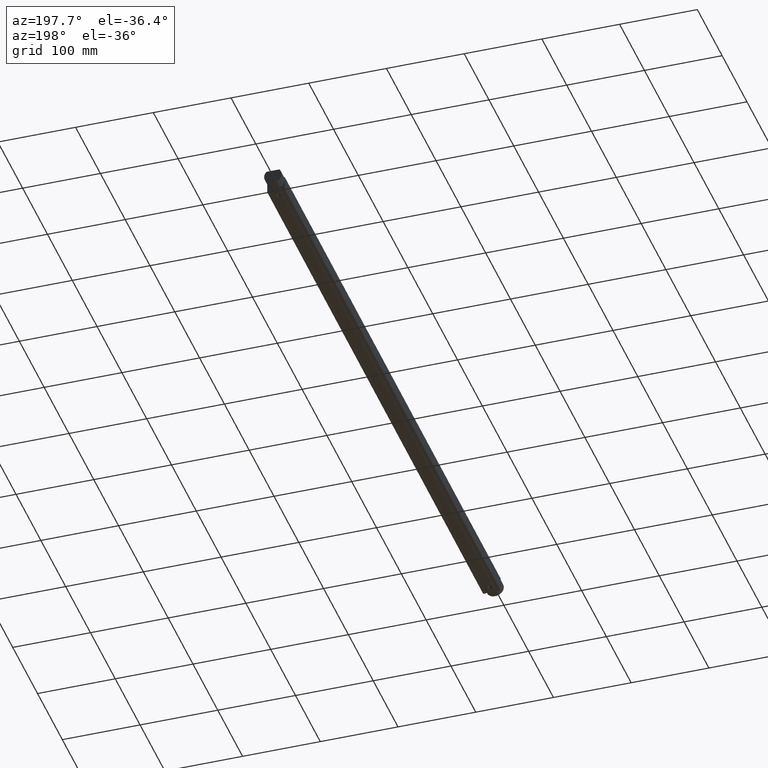
[diagram: clean part render]
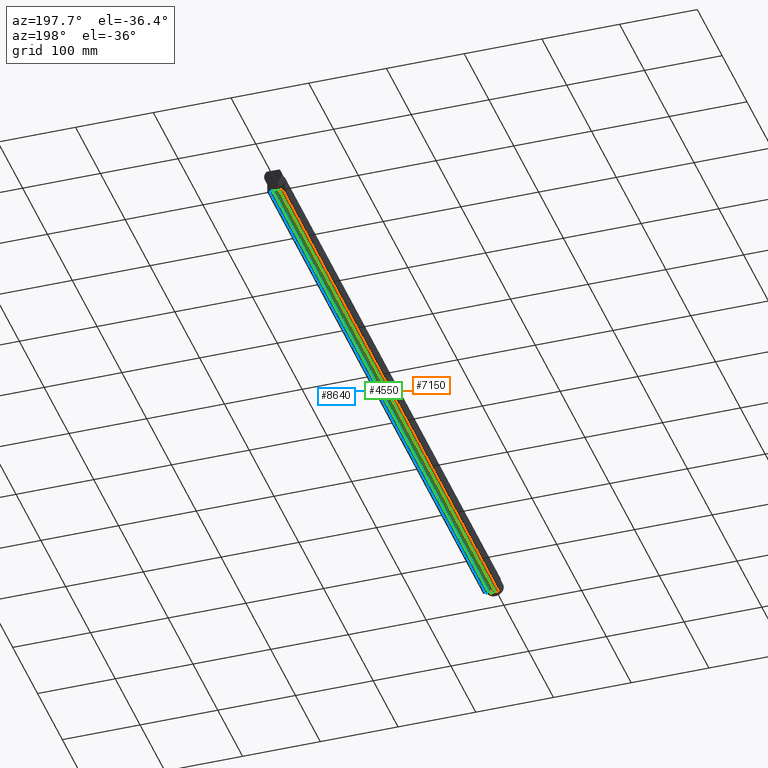
[diagram: same view with three faces highlighted in distinct colors, each labeled with its STEP entity id]
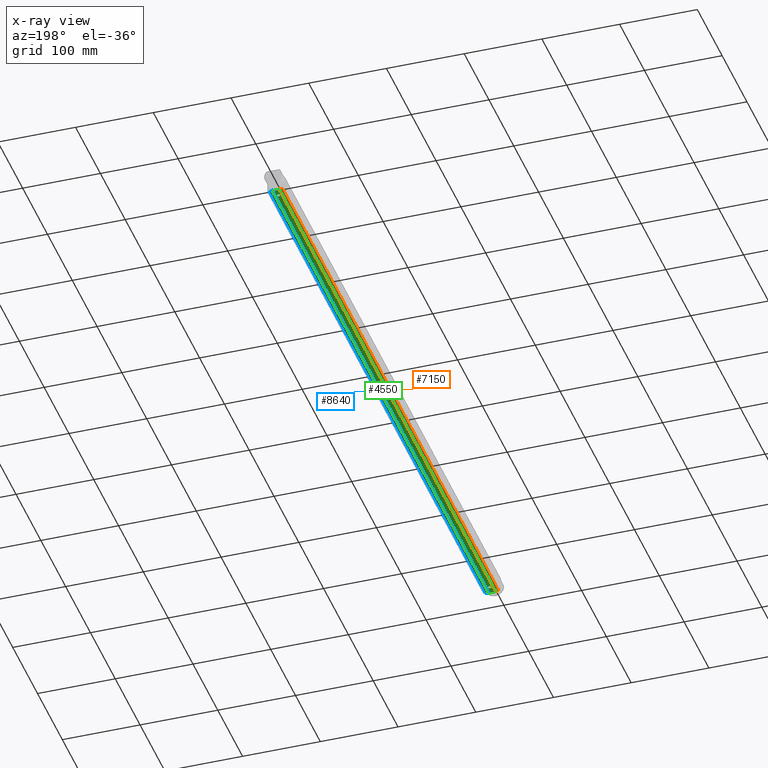
[diagram: x-ray of the same camera — body ghosted, the three highlighted faces saturated]
A machine part, auxiliary view with three faces highlighted in distinct colors.
The next image is the same camera in x-ray (body ghosted, the three faces saturated) — at least one of them is partly hidden behind the body in this view.
Their STEP definitions:

[orange] entity #7150 — the highlighted planar face has unit normal (-0, -0, 1).
#4990=CARTESIAN_POINT('',(12.5,-4.00000000000001,-4.50000000000001));
#5000=VERTEX_POINT('',#4990);
#5030=CARTESIAN_POINT('',(12.5,0.,-4.50000000000001));
#5040=DIRECTION('',(0.,-1.,0.));
#5050=VECTOR('',#5040,1.);
#5060=LINE('',#5030,#5050);
#5070=CARTESIAN_POINT('',(12.5,-8.,-4.50000000000001));
#5080=VERTEX_POINT('',#5070);
#5090=EDGE_CURVE('',#5000,#5080,#5060,.T.);
#6700=CARTESIAN_POINT('',(883.5,-8.,-4.50000000000001));
#6710=VERTEX_POINT('',#6700);
#6760=CARTESIAN_POINT('',(0.,-8.,-4.50000000000001));
#6770=DIRECTION('',(-1.,0.,0.));
#6780=VECTOR('',#6770,1.);
#6790=LINE('',#6760,#6780);
#6800=EDGE_CURVE('',#6710,#5080,#6790,.T.);
#6920=CARTESIAN_POINT('',(183.5,-8.,-4.50000000000001));
#6930=DIRECTION('',(-0.,-0.,-1.));
#6940=DIRECTION('',(0.,-1.,0.));
#6950=AXIS2_PLACEMENT_3D('',#6920,#6930,#6940);
#6960=PLANE('',#6950);
#6970=CARTESIAN_POINT('',(883.5,-7.75,-4.50000000000001));
#6980=DIRECTION('',(0.,1.,0.));
#6990=VECTOR('',#6980,1.);
#7000=LINE('',#6970,#6990);
#7010=CARTESIAN_POINT('',(883.5,-4.00000000000001,-4.50000000000001));
#7020=VERTEX_POINT('',#7010);
#7030=EDGE_CURVE('',#6710,#7020,#7000,.T.);
#7040=ORIENTED_EDGE('',*,*,#7030,.T.);
#7050=ORIENTED_EDGE('',*,*,#6800,.F.);
#7060=ORIENTED_EDGE('',*,*,#5090,.T.);
#7070=CARTESIAN_POINT('',(0.,-4.00000000000001,-4.50000000000001));
#7080=DIRECTION('',(-1.,0.,0.));
#7090=VECTOR('',#7080,1.);
#7100=LINE('',#7070,#7090);
#7110=EDGE_CURVE('',#7020,#5000,#7100,.T.);
#7120=ORIENTED_EDGE('',*,*,#7110,.T.);
#7130=EDGE_LOOP('',(#7120,#7060,#7050,#7040));
#7140=FACE_OUTER_BOUND('',#7130,.T.);
#7150=ADVANCED_FACE('',(#7140),#6960,.F.);

[blue] entity #8640 — the highlighted planar face has unit normal (-0, -0, 1).
#4760=CARTESIAN_POINT('',(12.5,7.99999999999999,-4.50000000000001));
#4770=VERTEX_POINT('',#4760);
#4800=CARTESIAN_POINT('',(12.5,0.,-4.50000000000001));
#4810=DIRECTION('',(0.,-1.,0.));
#4820=VECTOR('',#4810,1.);
#4830=LINE('',#4800,#4820);
#4840=CARTESIAN_POINT('',(12.5,4.,-4.50000000000001));
#4850=VERTEX_POINT('',#4840);
#4860=EDGE_CURVE('',#4770,#4850,#4830,.T.);
#6390=CARTESIAN_POINT('',(883.5,4.,-4.50000000000001));
#6400=VERTEX_POINT('',#6390);
#6450=CARTESIAN_POINT('',(0.,4.,-4.50000000000001));
#6460=DIRECTION('',(-1.,0.,0.));
#6470=VECTOR('',#6460,1.);
#6480=LINE('',#6450,#6470);
#6490=EDGE_CURVE('',#6400,#4850,#6480,.T.);
#7970=CARTESIAN_POINT('',(883.5,7.99999999999999,-4.50000000000001));
#7980=VERTEX_POINT('',#7970);
#8010=CARTESIAN_POINT('',(0.,7.99999999999999,-4.50000000000001));
#8020=DIRECTION('',(-1.,0.,0.));
#8030=VECTOR('',#8020,1.);
#8040=LINE('',#8010,#8030);
#8050=EDGE_CURVE('',#7980,#4770,#8040,.T.);
#8480=CARTESIAN_POINT('',(183.5,4.,-4.50000000000001));
#8490=DIRECTION('',(-0.,-0.,-1.));
#8500=DIRECTION('',(0.,-1.,0.));
#8510=AXIS2_PLACEMENT_3D('',#8480,#8490,#8500);
#8520=PLANE('',#8510);
#8530=CARTESIAN_POINT('',(883.5,4.25,-4.50000000000001));
#8540=DIRECTION('',(0.,1.,0.));
#8550=VECTOR('',#8540,1.);
#8560=LINE('',#8530,#8550);
#8570=EDGE_CURVE('',#6400,#7980,#8560,.T.);
#8580=ORIENTED_EDGE('',*,*,#8570,.T.);
#8590=ORIENTED_EDGE('',*,*,#6490,.F.);
#8600=ORIENTED_EDGE('',*,*,#4860,.T.);
#8610=ORIENTED_EDGE('',*,*,#8050,.T.);
#8620=EDGE_LOOP('',(#8610,#8600,#8590,#8580));
#8630=FACE_OUTER_BOUND('',#8620,.T.);
#8640=ADVANCED_FACE('',(#8630),#8520,.F.);

[green] entity #4550 — the highlighted planar face has unit normal (-0, -0, 1).
#3860=CARTESIAN_POINT('',(183.5,-4.00000000000001,-4.));
#3870=DIRECTION('',(-0.,-0.,-1.));
#3880=DIRECTION('',(0.,-1.,0.));
#3890=AXIS2_PLACEMENT_3D('',#3860,#3870,#3880);
#3900=PLANE('',#3890);
#3910=CARTESIAN_POINT('',(23.0000000000001,-3.46944695195361E-15,-4.));
#3920=DIRECTION('',(0.,0.,-1.));
#3930=DIRECTION('',(-1.,-2.3970724395316E-16,0.));
#3940=AXIS2_PLACEMENT_3D('',#3910,#3920,#3930);
#3950=CIRCLE('',#3940,2.2);
#3960=CARTESIAN_POINT('',(25.2000000000001,-2.67266871944424E-15,-4.));
#3970=VERTEX_POINT('',#3960);
#3980=CARTESIAN_POINT('',(20.8000000000001,-3.99680288865056E-15,-4.));
#3990=VERTEX_POINT('',#3980);
#4000=EDGE_CURVE('',#3970,#3990,#3950,.T.);
#4010=ORIENTED_EDGE('',*,*,#4000,.T.);
#4020=EDGE_CURVE('',#3990,#3970,#3950,.T.);
#4030=ORIENTED_EDGE('',*,*,#4020,.T.);
#4040=EDGE_LOOP('',(#4030,#4010));
#4050=FACE_BOUND('',#4040,.T.);
#4060=CARTESIAN_POINT('',(873.,-3.46944695195361E-15,-4.));
#4070=DIRECTION('',(0.,0.,-1.));
#4080=DIRECTION('',(1.,-3.78485122031329E-17,0.));
#4090=AXIS2_PLACEMENT_3D('',#4060,#4070,#4080);
#4100=CIRCLE('',#4090,2.2);
#4110=CARTESIAN_POINT('',(875.2,-3.5527136788005E-15,-4.));
#4120=VERTEX_POINT('',#4110);
#4130=CARTESIAN_POINT('',(870.8,-3.65560252091914E-15,-4.));
#4140=VERTEX_POINT('',#4130);
#4150=EDGE_CURVE('',#4120,#4140,#4100,.T.);
#4160=ORIENTED_EDGE('',*,*,#4150,.T.);
#4170=EDGE_CURVE('',#4140,#4120,#4100,.T.);
#4180=ORIENTED_EDGE('',*,*,#4170,.T.);
#4190=EDGE_LOOP('',(#4180,#4160));
#4200=FACE_BOUND('',#4190,.T.);
#4210=CARTESIAN_POINT('',(883.5,-3.75,-4.));
#4220=DIRECTION('',(0.,1.,0.));
#4230=VECTOR('',#4220,1.);
#4240=LINE('',#4210,#4230);
#4250=CARTESIAN_POINT('',(883.5,-4.00000000000001,-4.));
#4260=VERTEX_POINT('',#4250);
#4270=CARTESIAN_POINT('',(883.5,4.,-4.));
#4280=VERTEX_POINT('',#4270);
#4290=EDGE_CURVE('',#4260,#4280,#4240,.T.);
#4300=ORIENTED_EDGE('',*,*,#4290,.T.);
#4310=CARTESIAN_POINT('',(0.,-4.00000000000001,-4.));
#4320=DIRECTION('',(-1.,0.,0.));
#4330=VECTOR('',#4320,1.);
#4340=LINE('',#4310,#4330);
#4350=CARTESIAN_POINT('',(12.5,-4.00000000000001,-4.));
#4360=VERTEX_POINT('',#4350);
#4370=EDGE_CURVE('',#4260,#4360,#4340,.T.);
#4380=ORIENTED_EDGE('',*,*,#4370,.F.);
#4390=CARTESIAN_POINT('',(12.5,0.,-4.));
#4400=DIRECTION('',(0.,-1.,0.));
#4410=VECTOR('',#4400,1.);
#4420=LINE('',#4390,#4410);
#4430=CARTESIAN_POINT('',(12.5,4.,-4.));
#4440=VERTEX_POINT('',#4430);
#4450=EDGE_CURVE('',#4440,#4360,#4420,.T.);
#4460=ORIENTED_EDGE('',*,*,#4450,.T.);
#4470=CARTESIAN_POINT('',(0.,4.,-4.));
#4480=DIRECTION('',(-1.,0.,0.));
#4490=VECTOR('',#4480,1.);
#4500=LINE('',#4470,#4490);
#4510=EDGE_CURVE('',#4280,#4440,#4500,.T.);
#4520=ORIENTED_EDGE('',*,*,#4510,.T.);
#4530=EDGE_LOOP('',(#4520,#4460,#4380,#4300));
#4540=FACE_OUTER_BOUND('',#4530,.T.);
#4550=ADVANCED_FACE('',(#4050,#4200,#4540),#3900,.F.);